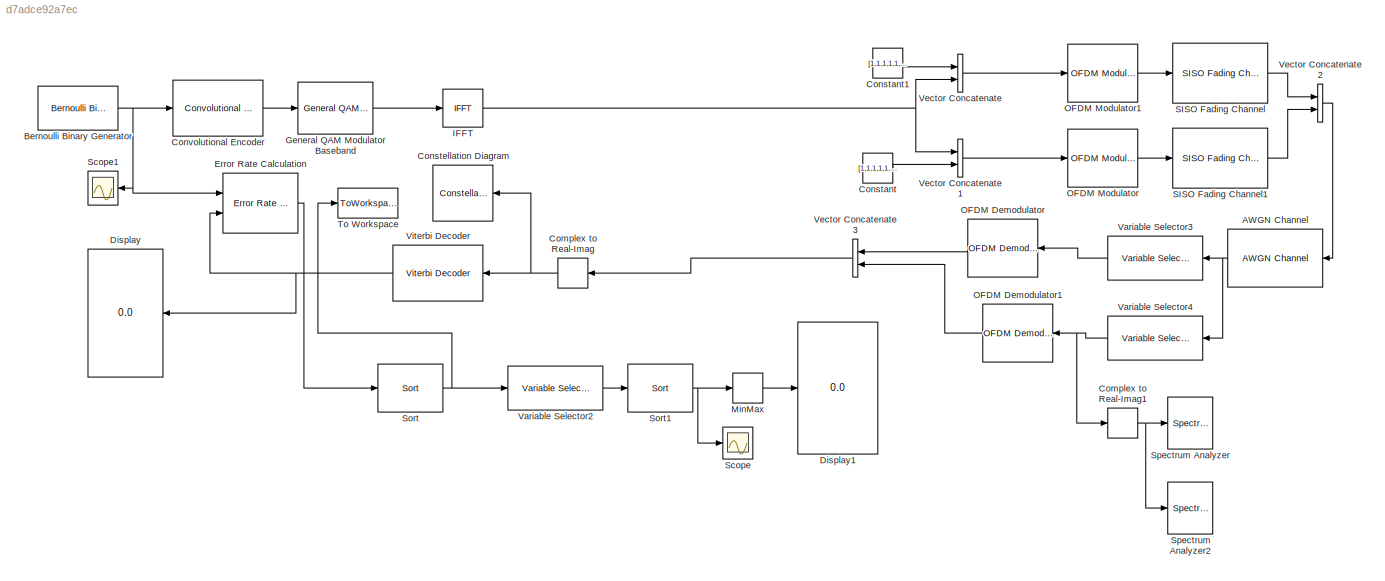
MODEL slx_d7adce92a7ec
KIND model
CONFIG AbsTol = auto
CONFIG EnableMultiTasking = off
CONFIG FixedStep = auto
CONFIG MaxStep = auto
CONFIG MinStep = auto
CONFIG RelTol = 1e-3
CONFIG SampleTimeConstraint = Unconstrained
CONFIG Solver = VariableStepAuto
CONFIG SolverName = VariableStepAuto
CONFIG StartTime = 0.0
CONFIG StopTime = 10.0
BLOCK [Reference] AWGN Channel  REF=commchan3/AWGN
Channel
  Ports = [1, 1]
  SourceBlock = commchan3/AWGN\nChannel
  SourceProductBaseCode = CM
  SourceProductName = Communications System Toolbox
  SourceType = AWGN Channel
  UserDataPersistent = on
BLOCK [Reference] Bernoulli Binary Generator  REF=commrandsrc3/Bernoulli Binary
Generator
  Ports = [0, 1]
  SourceBlock = commrandsrc3/Bernoulli Binary\nGenerator
  SourceProductBaseCode = CM
  SourceProductName = Communications System Toolbox
  SourceType = Bernoulli Binary Generator
BLOCK [ComplexToRealImag] Complex to Real-Imag
  Output = Real
  Ports = [1, 1]
BLOCK [ComplexToRealImag] Complex to Real-Imag1
  Output = Real
  Ports = [1, 1]
BLOCK [Constant] Constant
  Value = [1,1,1,1,1,1,1,1,1,1,1,1,1,1,1,1,1,1,1,1,1,1,1,1,1,1,1,1,1,1,1,1,1,1,1,1,1,1,1,1,1,1,1,1,1,1,1,1,1,1,1]
BLOCK [Constant] Constant1
  Value = [1,1,1,1,1,1,1,1,1,1,1,1,1,1,1,1,1,1,1,1,1,1,1,1,1,1,1,1,1,1,1,1,1,1,1,1,1,1,1,1,1,1,1,1,1,1,1,1,1,1,1]
BLOCK [ConstellationDiagram] Constellation Diagram
  Ports = [1]
  ScopeSpecificationString = comm.scopes.ConstellationDiagramBlockCfg('CurrentConfiguration', extmgr.ConfigurationSet(extmgr.Configuration('Core','General UI',true),extmgr.Configuration('Core','Source UI',true),extmgr.Configuration('Sources','WiredSimulink',true),extmgr.Configuration('Visuals','Constellation',true,'MinYLim','-2.5807','MaxYLim','2.016','MinXLim','-2.5807','MaxXLim','2.016','AxesProperties',struct('Color',[0 0 ...<+753ch>
BLOCK [Reference] Convolutional Encoder  REF=commcnvcod2/Convolutional
Encoder
  Ports = [1, 1]
  SourceBlock = commcnvcod2/Convolutional\nEncoder
  SourceProductBaseCode = CM
  SourceProductName = Communications System Toolbox
  SourceType = Convolutional Encoder
BLOCK [Display] Display
  Decimation = 1
  Ports = [1]
BLOCK [Display] Display1
  Decimation = 1
  Ports = [1]
BLOCK [Reference] Error Rate Calculation  REF=commsink2/Error Rate
Calculation
  Ports = [2, 1]
  SourceBlock = commsink2/Error Rate\nCalculation
  SourceProductBaseCode = CM
  SourceProductName = Communications System Toolbox
  SourceType = Error Rate Calculation
BLOCK [Reference] General QAM Modulator Baseband  REF=commdigbbndam3/General QAM
Modulator
Baseband
  Ports = [1, 1]
  SourceBlock = commdigbbndam3/General QAM\nModulator\nBaseband
  SourceProductBaseCode = CM
  SourceProductName = Communications System Toolbox
  SourceType = General QAM Modulator Baseband
BLOCK [Reference] IFFT  REF=dspxfrm3/IFFT
  Ports = [1, 1]
  SourceBlock = dspxfrm3/IFFT
  SourceProductBaseCode = DS
  SourceProductName = DSP System Toolbox
  SourceType = IFFT
BLOCK [MinMax] MinMax
  Function = max
  InputSameDT = off
  Ports = [1, 1]
  SaturateOnIntegerOverflow = off
BLOCK [Reference] OFDM Demodulator  REF=commofdm/OFDM Demodulator
  Ports = [1, 1]
  SourceBlock = commofdm/OFDM Demodulator
  SourceProductBaseCode = CM
  SourceProductName = Communications System Toolbox
  SourceType = OFDM Demodulator
BLOCK [Reference] OFDM Demodulator1  REF=commofdm/OFDM Demodulator
  Ports = [1, 1]
  SourceBlock = commofdm/OFDM Demodulator
  SourceProductBaseCode = CM
  SourceProductName = Communications System Toolbox
  SourceType = OFDM Demodulator
BLOCK [Reference] OFDM Modulator  REF=commofdm/OFDM Modulator
  Ports = [1, 1]
  SourceBlock = commofdm/OFDM Modulator
  SourceProductBaseCode = CM
  SourceProductName = Communications System Toolbox
  SourceType = OFDM Modulator
BLOCK [Reference] OFDM Modulator1  REF=commofdm/OFDM Modulator
  Ports = [1, 1]
  SourceBlock = commofdm/OFDM Modulator
  SourceProductBaseCode = CM
  SourceProductName = Communications System Toolbox
  SourceType = OFDM Modulator
BLOCK [Reference] SISO Fading Channel  REF=commchan3/SISO Fading Channel
  Ports = [1, 1]
  SourceBlock = commchan3/SISO Fading Channel
  SourceProductBaseCode = CM
  SourceProductName = Communications System Toolbox
  SourceType = SISO Fading Channel
BLOCK [Reference] SISO Fading Channel1  REF=commchan3/SISO Fading Channel
  Ports = [1, 1]
  SourceBlock = commchan3/SISO Fading Channel
  SourceProductBaseCode = CM
  SourceProductName = Communications System Toolbox
  SourceType = SISO Fading Channel
BLOCK [Scope] Scope
  Floating = off
  NumInputPorts = 1
  Ports = [1]
  ScopeSpecificationString = Simulink.scopes.TimeScopeBlockCfg('CurrentConfiguration', extmgr.ConfigurationSet(extmgr.Configuration('Core','General UI',true),extmgr.Configuration('Core','Source UI',true),extmgr.Configuration('Sources','WiredSimulink',true,'DataLoggingVariableName','ScopeData1','SampleTime','0'),extmgr.Configuration('Visuals','Time Domain',true,'SerializedDisplays',{struct('MinYLimReal','0','MaxYLimReal','1','...<+1448ch>
BLOCK [Scope] Scope1
  Floating = off
  NumInputPorts = 1
  Ports = [1]
  ScopeSpecificationString = Simulink.scopes.TimeScopeBlockCfg('CurrentConfiguration', extmgr.ConfigurationSet(extmgr.Configuration('Core','General UI',true),extmgr.Configuration('Core','Source UI',true),extmgr.Configuration('Sources','WiredSimulink',true),extmgr.Configuration('Visuals','Time Domain',true,'SerializedDisplays',{struct('MinYLimReal','-0.125','MaxYLimReal','1.125','YLabelReal','','MinYLimMag','0.00000','MaxYLimM...<+1334ch>
BLOCK [Reference] Sort  REF=dspstat3/Sort
  Ports = [1, 1]
  SourceBlock = dspstat3/Sort
  SourceProductBaseCode = DS
  SourceProductName = DSP System Toolbox
  SourceType = Sort
BLOCK [Reference] Sort1  REF=dspstat3/Sort
  Ports = [1, 1]
  SourceBlock = dspstat3/Sort
  SourceProductBaseCode = DS
  SourceProductName = DSP System Toolbox
  SourceType = Sort
BLOCK [SpectrumAnalyzer] Spectrum Analyzer
  Ports = [1]
  ScopeSpecificationString = spbscopes.SpectrumAnalyzerBlockCfg('CurrentConfiguration', extmgr.ConfigurationSet(extmgr.Configuration('Core','General UI',true),extmgr.Configuration('Core','Source UI',true),extmgr.Configuration('Sources','WiredSimulink',true),extmgr.Configuration('Sources','SimulinkEvent',false),extmgr.Configuration('Sources','Simulink',false),extmgr.Configuration('Sources','SPTool',false),extmgr.Configuration(...<+4038ch>
BLOCK [SpectrumAnalyzer] Spectrum Analyzer2
  Ports = [1]
  ScopeSpecificationString = spbscopes.SpectrumAnalyzerBlockCfg('CurrentConfiguration', extmgr.ConfigurationSet(extmgr.Configuration('Core','General UI',true),extmgr.Configuration('Core','Source UI',true),extmgr.Configuration('Sources','WiredSimulink',true),extmgr.Configuration('Sources','SimulinkEvent',false),extmgr.Configuration('Sources','Simulink',false),extmgr.Configuration('Sources','SPTool',false),extmgr.Configuration(...<+4318ch>
BLOCK [ToWorkspace] To Workspace
  FixptAsFi = on
  MaxDataPoints = 5
  Ports = [1]
  Save2DSignal = 2-D array (concatenate along first dimension)
  VariableName = ber
BLOCK [Reference] Variable Selector2  REF=dspindex/Variable
Selector
  Ports = [1, 1]
  SourceBlock = dspindex/Variable\nSelector
  SourceProductBaseCode = DS
  SourceProductName = DSP System Toolbox
  SourceType = Variable Selector
BLOCK [Reference] Variable Selector3  REF=dspindex/Variable
Selector
  Ports = [1, 1]
  SourceBlock = dspindex/Variable\nSelector
  SourceProductBaseCode = DS
  SourceProductName = DSP System Toolbox
  SourceType = Variable Selector
BLOCK [Reference] Variable Selector4  REF=dspindex/Variable
Selector
  Ports = [1, 1]
  SourceBlock = dspindex/Variable\nSelector
  SourceProductBaseCode = DS
  SourceProductName = DSP System Toolbox
  SourceType = Variable Selector
BLOCK [Concatenate] Vector Concatenate
  Ports = [2, 1]
BLOCK [Concatenate] Vector Concatenate1
  Ports = [2, 1]
BLOCK [Concatenate] Vector Concatenate2
  Ports = [2, 1]
BLOCK [Concatenate] Vector Concatenate3
  Ports = [2, 1]
BLOCK [Reference] Viterbi Decoder  REF=commcnvcod2/Viterbi Decoder
  Ports = [1, 1]
  SourceBlock = commcnvcod2/Viterbi Decoder
  SourceProductBaseCode = CM
  SourceProductName = Communications System Toolbox
  SourceType = Viterbi Decoder
NET AWGN Channel:1 -> Variable Selector3:1, Variable Selector4:1
NET Bernoulli Binary Generator:1 -> Convolutional Encoder:1, Error Rate Calculation:1, Scope1:1
NET Complex to Real-Imag1:1 -> Spectrum Analyzer2:1, Spectrum Analyzer:1
NET Complex to Real-Imag:1 -> Constellation Diagram:1, Viterbi Decoder:1
LINE Constant1:1 -> Vector Concatenate:1
LINE Constant:1 -> Vector Concatenate1:2
LINE Convolutional Encoder:1 -> General QAM Modulator Baseband:1
LINE Error Rate Calculation:1 -> Sort:1
LINE General QAM Modulator Baseband:1 -> IFFT:1
NET IFFT:1 -> Vector Concatenate1:1, Vector Concatenate:2
LINE MinMax:1 -> Display1:1
LINE OFDM Demodulator1:1 -> Vector Concatenate3:2
LINE OFDM Demodulator:1 -> Vector Concatenate3:1
LINE OFDM Modulator1:1 -> SISO Fading Channel:1
LINE OFDM Modulator:1 -> SISO Fading Channel1:1
LINE SISO Fading Channel1:1 -> Vector Concatenate2:2
LINE SISO Fading Channel:1 -> Vector Concatenate2:1
NET Sort1:1 -> MinMax:1, Scope:1
NET Sort:1 -> To Workspace:1, Variable Selector2:1
LINE Variable Selector2:1 -> Sort1:1
LINE Variable Selector3:1 -> OFDM Demodulator:1
NET Variable Selector4:1 -> Complex to Real-Imag1:1, OFDM Demodulator1:1
LINE Vector Concatenate1:1 -> OFDM Modulator:1
LINE Vector Concatenate2:1 -> AWGN Channel:1
LINE Vector Concatenate3:1 -> Complex to Real-Imag:1
LINE Vector Concatenate:1 -> OFDM Modulator1:1
NET Viterbi Decoder:1 -> Display:1, Error Rate Calculation:2
note: NET lines group one-source signal fan-out (src -> all destinations, sorted); 1:1 wires keep LINE
